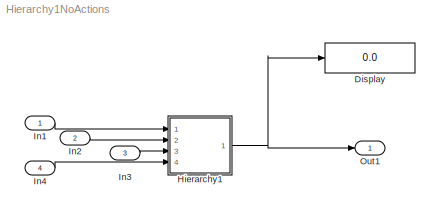
MODEL Hierarchy1NoActions
KIND model
BLOCK [Display] Display
  Decimation = 1
  Ports = [1]
  SID = 1
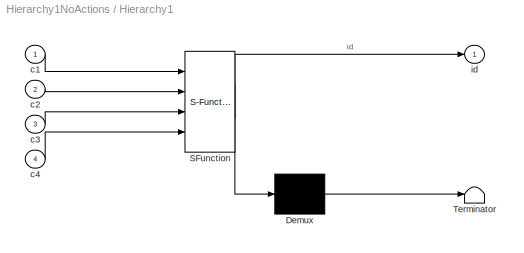
BLOCK [SubSystem] Hierarchy1
  ErrorFcn = Stateflow.Translate.translate
  PermitHierarchicalResolution = ExplicitOnly
  Ports = [4, 1]
  RequestExecContextInheritance = off
  SFBlockType = Chart
  SID = 2
  TreatAsAtomicUnit = on
  Variant = off
BLOCK [Demux] Hierarchy1/ Demux 
  Outputs = 1
  Ports = [1, 1]
  SID = 2::13
BLOCK [S-Function] Hierarchy1/ SFunction 
  EnableBusSupport = on
  FunctionName = sf_sfun
  PortCounts = [4 2]
  Ports = [4, 2]
  SFcnIsStateOwnerBlock = off
  SFunctionDeploymentMode = off
  SID = 2::12
  Tag = Stateflow S-Function Hierarchy1NoActions 1
BLOCK [Terminator] Hierarchy1/ Terminator 
  SID = 2::14
BLOCK [Inport] Hierarchy1/c1
  IconDisplay = Port number
  SID = 2::15
BLOCK [Inport] Hierarchy1/c2
  IconDisplay = Port number
  Port = 2
  SID = 2::16
BLOCK [Inport] Hierarchy1/c3
  IconDisplay = Port number
  Port = 3
  SID = 2::17
BLOCK [Inport] Hierarchy1/c4
  IconDisplay = Port number
  Port = 4
  SID = 2::18
BLOCK [Outport] Hierarchy1/id
  IconDisplay = Port number
  SID = 2::19
BLOCK [Inport] In1
  IconDisplay = Port number
  OutDataTypeStr = boolean
  SID = 8
BLOCK [Inport] In2
  IconDisplay = Port number
  OutDataTypeStr = boolean
  Port = 2
  SID = 9
BLOCK [Inport] In3
  IconDisplay = Port number
  OutDataTypeStr = boolean
  Port = 3
  SID = 10
BLOCK [Inport] In4
  IconDisplay = Port number
  OutDataTypeStr = boolean
  Port = 4
  SID = 11
BLOCK [Outport] Out1
  IconDisplay = Port number
  SID = 3
LINE Hierarchy1/ Demux :1 -> Hierarchy1/ Terminator :1
LINE Hierarchy1/ SFunction :1 -> Hierarchy1/ Demux :1
LINE Hierarchy1/ SFunction :2 -> Hierarchy1/id:1
LINE Hierarchy1/c1:1 -> Hierarchy1/ SFunction :1
LINE Hierarchy1/c2:1 -> Hierarchy1/ SFunction :2
LINE Hierarchy1/c3:1 -> Hierarchy1/ SFunction :3
LINE Hierarchy1/c4:1 -> Hierarchy1/ SFunction :4
NET Hierarchy1:1 -> Display:1, Out1:1
LINE In1:1 -> Hierarchy1:1
LINE In2:1 -> Hierarchy1:2
LINE In3:1 -> Hierarchy1:3
LINE In4:1 -> Hierarchy1:4
note: NET lines group one-source signal fan-out (src -> all destinations, sorted); 1:1 wires keep LINE
CHART Hierarchy1 states=7 transitions=10
  STATE_LABEL 'N1/\\nen:id=21;'
  STATE_LABEL 'N2/\\nen:id=22;'
  STATE_LABEL 'A/\\nen: id=31;'
  STATE_LABEL 'B/\\nen: id=32;'
  STATE_LABEL 'C/\\nen: id=33;'
  STATE_LABEL 'D/\\nen: id=34;'
  STATE_LABEL 'TOP/ \\nen:id=1;'
